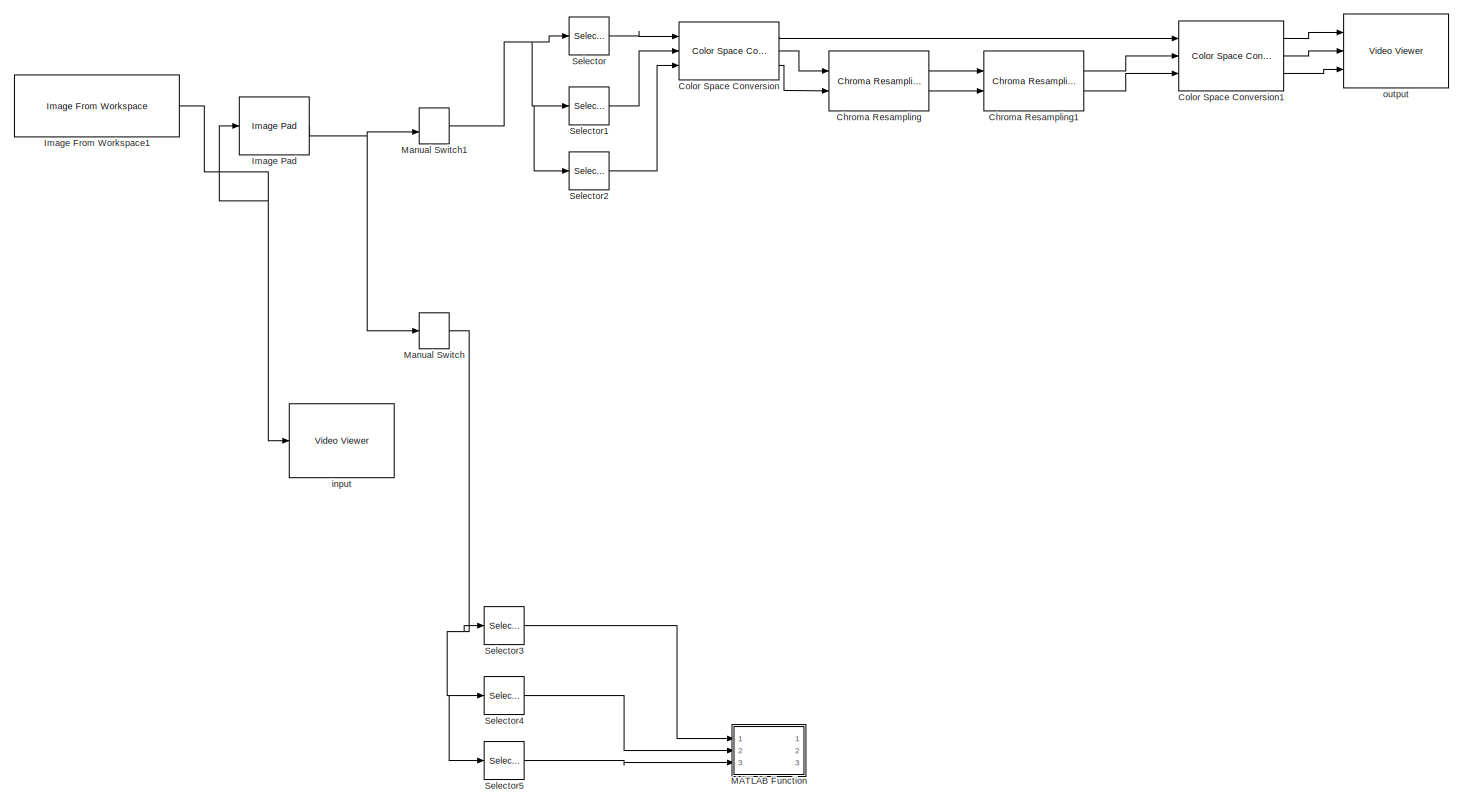
[diagram: root canvas - part 1/1, most of the canvas]
MODEL slx_6435a2d2b4e5
KIND model
BLOCK [Reference] Chroma Resampling  REF=visionconversions/Chroma
Resampling
  Ports = [2, 2]
  SourceBlock = visionconversions/Chroma\nResampling
  SourceType = Chroma Resampling
  antialiasing = Default
  hcoeff = [0.2 0.6 0.2]
  interpolation = linear
  isInputTransposed = off
  resampling = 4:4:4 to 4:2:2
  vcoeff = [0.5 0.5]
BLOCK [Reference] Chroma Resampling1  REF=visionconversions/Chroma
Resampling
  Ports = [2, 2]
  SourceBlock = visionconversions/Chroma\nResampling
  SourceType = Chroma Resampling
  antialiasing = Default
  hcoeff = [0.2 0.6 0.2]
  interpolation = linear
  isInputTransposed = off
  resampling = 4:2:2 to 4:4:4
  vcoeff = [0.5 0.5]
BLOCK [Reference] Color Space Conversion  REF=visionconversions/Color Space
 Conversion
  Ports = [3, 3]
  SourceBlock = visionconversions/Color Space\n Conversion
  SourceType = Color Space Conversion
  conversion = Obsolete
  conversionActive = R'G'B' to Y'CbCr
  imagePorts = Separate color signals
  rec = Rec. 601 (SDTV)
  sys = 1125/60/2:1
  wp_str = D65
BLOCK [Reference] Color Space Conversion1  REF=visionconversions/Color Space
 Conversion
  Ports = [3, 3]
  SourceBlock = visionconversions/Color Space\n Conversion
  SourceType = Color Space Conversion
  conversion = Obsolete
  conversionActive = Y'CbCr to R'G'B'
  imagePorts = Separate color signals
  rec = Rec. 601 (SDTV)
  sys = 1125/60/2:1
  wp_str = D65
BLOCK [Reference] Image From Workspace1  REF=visionsources/Image From Workspace
  FractionLength = 15
  FractionLengthMode = User-defined
  ImageDataType = Inherit from 'Value'
  ImageValue = I
  OutPortLabels = R|G|B
  Ports = [0, 1]
  Signed = on
  SourceBlock = visionsources/Image From Workspace
  SourceType = Image From Workspace
  Tag = vipblks_nd
  Ts = inf
  WordLength = 16
  imagePorts = One multidimensional signal
  sdImageDataType = sfix(16)
BLOCK [Reference] Image Pad  REF=visionutilities/Image Pad
  Ports = [1, 1]
  SourceBlock = visionutilities/Image Pad
  SourceType = Image Pad
  colDirection = No padding
  colSize = [2 3]
  method = Symmetric
  outColSize = 10
  outColsMode = User-specified
  outRowSize = 12
  outRowsMode = User-specified
  rowDirection = Right
  rowSize = 1
  spec = Pad size
  trunc_flag = None
  valSrc = Input port
  value = 0
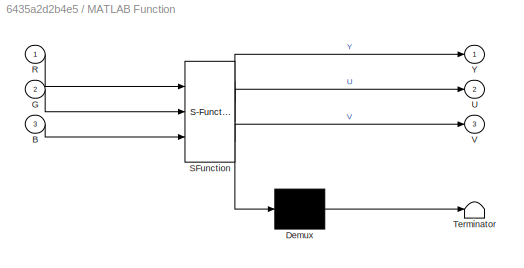
BLOCK [SubSystem] MATLAB Function
  ErrorFcn = Stateflow.Translate.translate
  PermitHierarchicalResolution = ExplicitOnly
  Ports = [3, 3]
  RequestExecContextInheritance = off
  SFBlockType = MATLAB Function
  TreatAsAtomicUnit = on
BLOCK [Demux] MATLAB Function/ Demux 
  Outputs = 1
  Ports = [1, 1]
BLOCK [S-Function] MATLAB Function/ SFunction 
  EnableBusSupport = on
  FunctionName = sf_sfun
  PortCounts = [3 4]
  Ports = [3, 4]
  Tag = Stateflow S-Function odev2 2
BLOCK [Terminator] MATLAB Function/ Terminator 
BLOCK [Inport] MATLAB Function/B
  IconDisplay = Port number
  Port = 3
BLOCK [Inport] MATLAB Function/G
  IconDisplay = Port number
  Port = 2
BLOCK [Inport] MATLAB Function/R
  IconDisplay = Port number
BLOCK [Outport] MATLAB Function/U
  IconDisplay = Port number
  Port = 2
BLOCK [Outport] MATLAB Function/V
  IconDisplay = Port number
  Port = 3
BLOCK [Outport] MATLAB Function/Y
  IconDisplay = Port number
BLOCK [ManualSwitch] Manual Switch
BLOCK [ManualSwitch] Manual Switch1
  CurrentSetting = 0
BLOCK [Selector] Selector
  IndexOptions = Select all,Select all,Index vector (dialog)
  Indices = [1 3],1,1
  InputPortWidth = 3
  NumberOfDimensions = 3
  OutputSizes = 1,1,1
  Ports = [1, 1]
BLOCK [Selector] Selector1
  IndexOptions = Select all,Select all,Index vector (dialog)
  Indices = [1 3],1,2
  InputPortWidth = 3
  NumberOfDimensions = 3
  OutputSizes = 1,1,1
  Ports = [1, 1]
BLOCK [Selector] Selector2
  IndexOptions = Select all,Select all,Index vector (dialog)
  Indices = [1 3],1,3
  InputPortWidth = 3
  NumberOfDimensions = 3
  OutputSizes = 1,1,1
  Ports = [1, 1]
BLOCK [Selector] Selector3
  IndexOptions = Select all,Select all,Index vector (dialog)
  Indices = [1 3],1,1
  InputPortWidth = 3
  NumberOfDimensions = 3
  OutputSizes = 1,1,1
  Ports = [1, 1]
BLOCK [Selector] Selector4
  IndexOptions = Select all,Select all,Index vector (dialog)
  Indices = [1 3],1,2
  InputPortWidth = 3
  NumberOfDimensions = 3
  OutputSizes = 1,1,1
  Ports = [1, 1]
BLOCK [Selector] Selector5
  IndexOptions = Select all,Select all,Index vector (dialog)
  Indices = [1 3],1,3
  InputPortWidth = 3
  NumberOfDimensions = 3
  OutputSizes = 1,1,1
  Ports = [1, 1]
BLOCK [Reference] input  REF=visionsinks/Video Viewer
  AxisZoom = on
  DefaultConfigurationName = vipscopes.VideoViewerScopeCfg
  FigPos = [488 560 410 300]
  OpenAtMdlStart = on
  Ports = [1]
  SourceBlock = visionsinks/Video Viewer
  SourceType = Video Viewer
  UserDataPersistent = on
  colormapValue = gray(256)
  imagePorts = One multidimensional signal
  inputType = Obsolete7b
  maxInputVal = 255
  minInputVal = 0
  specRange = off
  trueSizedOnce = off
  useColorMap = off
BLOCK [Reference] output  REF=visionsinks/Video Viewer
  AxisZoom = on
  DefaultConfigurationName = vipscopes.VideoViewerScopeCfg
  FigPos = [1023 557 410 300]
  OpenAtMdlStart = on
  Ports = [3]
  SourceBlock = visionsinks/Video Viewer
  SourceType = Video Viewer
  UserDataPersistent = on
  colormapValue = gray(256)
  imagePorts = Separate color signals
  inputType = Obsolete7b
  maxInputVal = 255
  minInputVal = 0
  specRange = off
  trueSizedOnce = off
  useColorMap = off
LINE Chroma Resampling1:1 -> Color Space Conversion1:2
LINE Chroma Resampling1:2 -> Color Space Conversion1:3
LINE Chroma Resampling:1 -> Chroma Resampling1:1
LINE Chroma Resampling:2 -> Chroma Resampling1:2
LINE Color Space Conversion1:1 -> output:1
LINE Color Space Conversion1:2 -> output:2
LINE Color Space Conversion1:3 -> output:3
LINE Color Space Conversion:1 -> Color Space Conversion1:1
LINE Color Space Conversion:2 -> Chroma Resampling:1
LINE Color Space Conversion:3 -> Chroma Resampling:2
NET Image From Workspace1:1 -> Image Pad:1, input:1
NET Image Pad:1 -> Manual Switch1:2, Manual Switch:1
NET Manual Switch1:1 -> Selector1:1, Selector2:1, Selector:1
NET Manual Switch:1 -> Selector3:1, Selector4:1, Selector5:1
LINE Selector1:1 -> Color Space Conversion:2
LINE Selector2:1 -> Color Space Conversion:3
LINE Selector3:1 -> MATLAB Function:1
LINE Selector4:1 -> MATLAB Function:2
LINE Selector5:1 -> MATLAB Function:3
LINE Selector:1 -> Color Space Conversion:1
note: NET lines group one-source signal fan-out (src -> all destinations, sorted); 1:1 wires keep LINE
